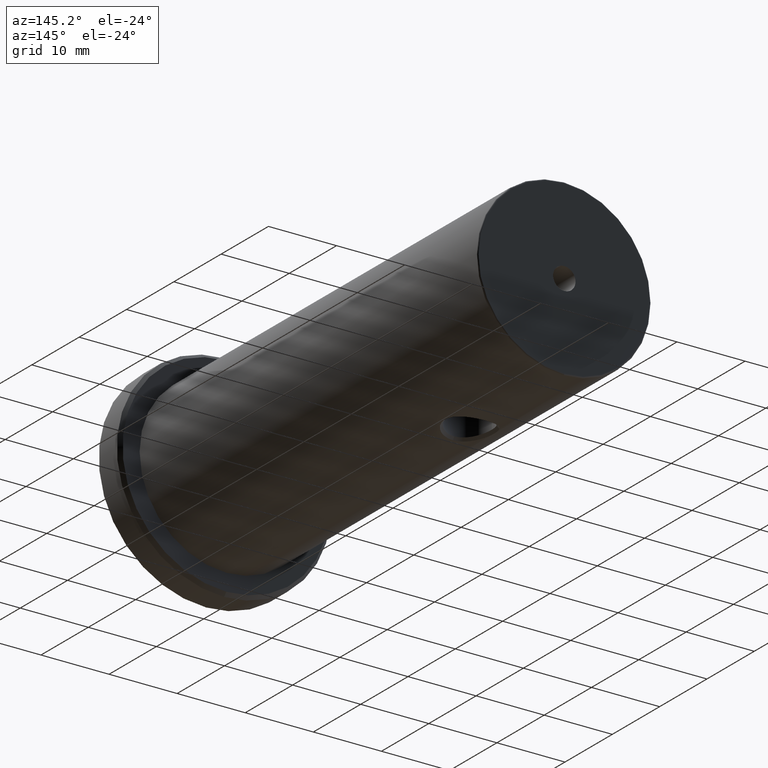
[diagram: clean part render]
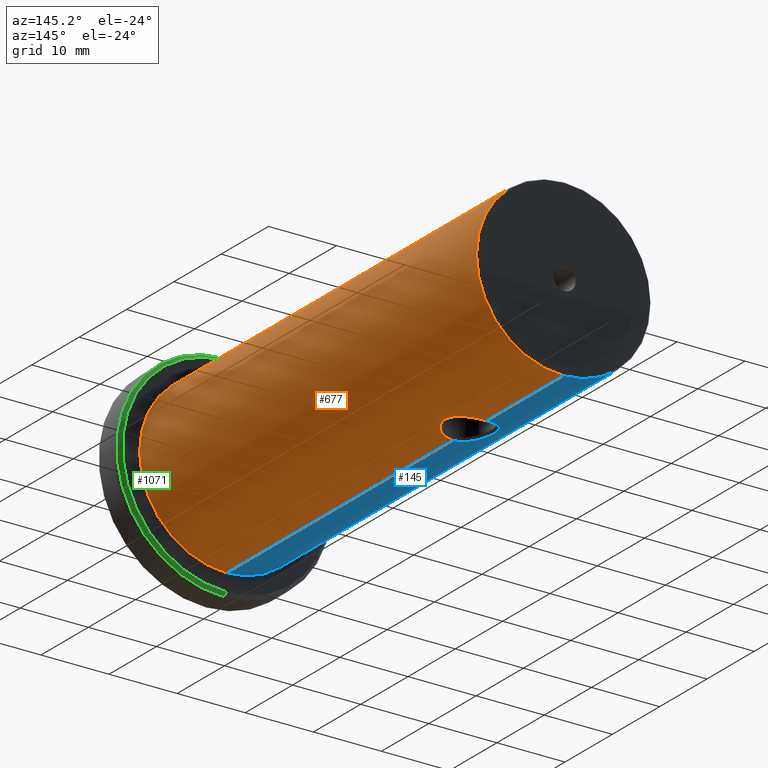
[diagram: same view with three faces highlighted in distinct colors, each labeled with its STEP entity id]
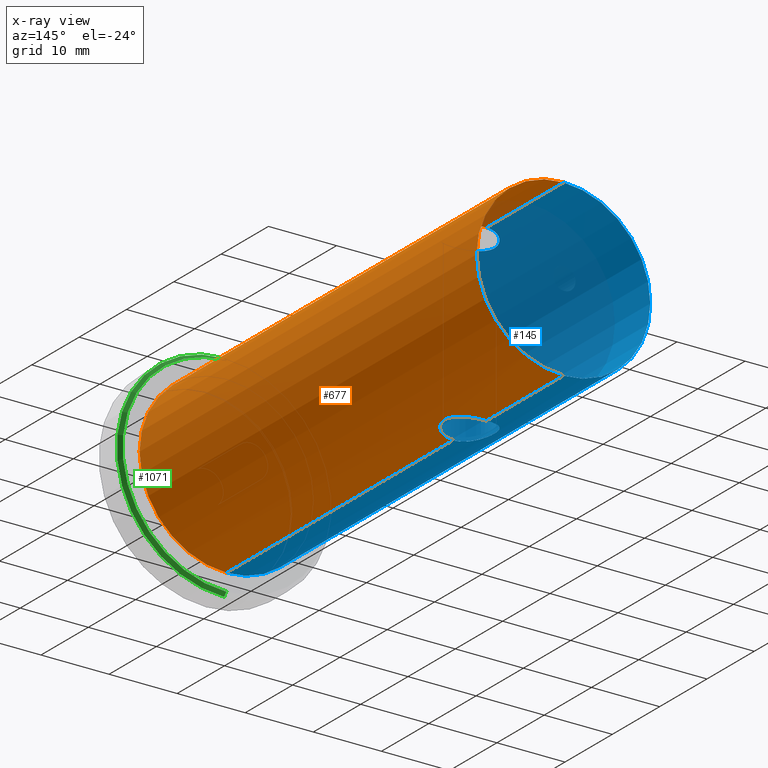
[diagram: x-ray of the same camera — body ghosted, the three highlighted faces saturated]
A machine part, auxiliary view with three faces highlighted in distinct colors.
The next image is the same camera in x-ray (body ghosted, the three faces saturated) — at least one of them is partly hidden behind the body in this view.
Their STEP definitions:

[orange] entity #677 — the highlighted cylindrical surface (partial cylindrical patch) has radius 12.75 mm, axis along (-0, -1, -0).
#42 = CARTESIAN_POINT ( 'NONE',  ( 0.9407393882889534265, 59.61079948247463989, -12.71738396813528027 ) ) ;
#45 = DIRECTION ( 'NONE',  ( -0.000000000000000000, -1.000000000000000000, -0.000000000000000000 ) ) ;
#48 = CARTESIAN_POINT ( 'NONE',  ( 0.000000000000000000, 75.99999999999998579, -12.75000000000000000 ) ) ;
#68 = CIRCLE ( 'NONE', #882, 12.75000000000000000 ) ;
#74 = LINE ( 'NONE', #498, #878 ) ;
#87 = CARTESIAN_POINT ( 'NONE',  ( 1.170622004076832923, 52.85730571162838487, -12.69818165278112154 ) ) ;
#118 = CIRCLE ( 'NONE', #1353, 12.75000000000000000 ) ;
#127 = CARTESIAN_POINT ( 'NONE',  ( 2.892035043247136450, 58.35264160520895871, -12.41840303761199849 ) ) ;
#143 = CARTESIAN_POINT ( 'NONE',  ( 2.742332872511863862, 58.52934498168831823, -12.45278699760889474 ) ) ;
#150 = CARTESIAN_POINT ( 'NONE',  ( 2.406315440693707064, 58.85440117081791556, 12.52204964536912790 ) ) ;
#153 = FACE_OUTER_BOUND ( 'NONE', #848, .T. ) ;
#158 = CARTESIAN_POINT ( 'NONE',  ( 3.640570356984643485, 56.43070274208038484, 12.21919586152654169 ) ) ;
#181 = CARTESIAN_POINT ( 'NONE',  ( -1.248567903695817854E-16, 59.72410025591509708, -12.75000000000000178 ) ) ;
#185 = CARTESIAN_POINT ( 'NONE',  ( 2.236191487499902930, 53.38098169954886885, 12.55706251073218915 ) ) ;
#186 = ORIENTED_EDGE ( 'NONE', *, *, #698, .T. ) ;
#193 = CARTESIAN_POINT ( 'NONE',  ( 0.03027949127382041639, 52.67597521270787553, -12.74997276888836240 ) ) ;
#201 = CARTESIAN_POINT ( 'NONE',  ( 3.446456387668597188, 55.06976917849148379, -12.27541365104979754 ) ) ;
#209 = CARTESIAN_POINT ( 'NONE',  ( 3.640221297053447547, 55.97022942223960484, -12.21929985508286975 ) ) ;
#211 = ORIENTED_EDGE ( 'NONE', *, *, #659, .F. ) ;
#243 = VECTOR ( 'NONE', #305, 1000.000000000000000 ) ;
#244 = CARTESIAN_POINT ( 'NONE',  ( 5.141595970675605500E-11, 59.72409768546009445, 12.74999968928411320 ) ) ;
#257 = VERTEX_POINT ( 'NONE', #653 ) ;
#263 = CARTESIAN_POINT ( 'NONE',  ( 3.264272287397143035, 54.63080984024566789, 12.32543516798856231 ) ) ;
#267 = CARTESIAN_POINT ( 'NONE',  ( 3.517627349664022240, 57.10841347431223625, 12.25520876361821010 ) ) ;
#288 = CARTESIAN_POINT ( 'NONE',  ( 0.4776096156594242248, 52.67572028153879415, 12.74999999999978861 ) ) ;
#290 = VERTEX_POINT ( 'NONE', #244 ) ;
#291 = LINE ( 'NONE', #1051, #243 ) ;
#302 = CARTESIAN_POINT ( 'NONE',  ( 0.8263362941263415751, 52.75511141154360217, -12.72694638460118277 ) ) ;
#303 = CARTESIAN_POINT ( 'NONE',  ( 0.000000000000000000, 75.99999999999998579, 0.000000000000000000 ) ) ;
#305 = DIRECTION ( 'NONE',  ( -0.000000000000000000, -1.000000000000000000, -0.000000000000000000 ) ) ;
#311 = CARTESIAN_POINT ( 'NONE',  ( 3.516936708190808947, 55.29217101836945858, -12.25540689357401014 ) ) ;
#356 = CYLINDRICAL_SURFACE ( 'NONE', #596, 12.75000000000000000 ) ;
#359 = CARTESIAN_POINT ( 'NONE',  ( 5.141595970675605500E-11, 59.72409768546009445, 12.74999968928411320 ) ) ;
#364 = CARTESIAN_POINT ( 'NONE',  ( 3.516638973226421605, 55.29097946084467452, 12.25549266825986017 ) ) ;
#373 = VERTEX_POINT ( 'NONE', #48 ) ;
#376 = CARTESIAN_POINT ( 'NONE',  ( 0.4787531422279701077, 59.72460721686105245, 12.74999999999580602 ) ) ;
#377 = VECTOR ( 'NONE', #45, 1000.000000000000000 ) ;
#388 = CARTESIAN_POINT ( 'NONE',  ( 3.640258235127870279, 55.96917435277756425, 12.21928885034290957 ) ) ;
#391 = CARTESIAN_POINT ( 'NONE',  ( 1.561424668912875111E-15, 4.799999999999995381, 12.75000000000000000 ) ) ;
#404 = CARTESIAN_POINT ( 'NONE',  ( 1.831336797905347202, 53.14692450727872597, -12.61935926091367222 ) ) ;
#410 = CARTESIAN_POINT ( 'NONE',  ( 0.06010915379576306505, 52.67631598315315955, -12.74986703242887032 ) ) ;
#419 = CARTESIAN_POINT ( 'NONE',  ( 1.844978246665359857E-11, 52.67589988564318304, 12.74999998147677971 ) ) ;
#448 = CARTESIAN_POINT ( 'NONE',  ( 3.131834075114650113E-09, 52.67590097807928373, -12.74999984489722671 ) ) ;
#456 = EDGE_CURVE ( 'NONE', #1073, #290, #291, .T. ) ;
#460 = CARTESIAN_POINT ( 'NONE',  ( 0.4752159204876909571, 59.70158165621003832, -12.74327334002443912 ) ) ;
#472 = CARTESIAN_POINT ( 'NONE',  ( 0.000000000000000000, -7.650118203309686393, 0.000000000000000000 ) ) ;
#498 = CARTESIAN_POINT ( 'NONE',  ( 1.561424668912875111E-15, -7.650118203309686393, 12.75000000000000000 ) ) ;
#504 = CARTESIAN_POINT ( 'NONE',  ( 3.405234116312670256, 57.44297622169172968, 12.28695266771240213 ) ) ;
#513 = CARTESIAN_POINT ( 'NONE',  ( 1.622521076490264003, 53.03906277480989928, -12.64838323738653791 ) ) ;
#522 = CARTESIAN_POINT ( 'NONE',  ( 3.131834075114650113E-09, 52.67590097807928373, -12.74999984489722671 ) ) ;
#525 = VERTEX_POINT ( 'NONE', #794 ) ;
#533 = B_SPLINE_CURVE_WITH_KNOTS ( 'NONE', 3,
 ( #522, #720, #193, #410, #1141, #611, #1039, #302, #87, #513, #404, #824, #1257, #1265, #730, #1147, #201, #311, #738, #1156, #209, #631, #1056, #540, #535, #675, #743, #127, #143, #1099, #991, #1171, #42, #460, #1178, #957 ),
 .UNSPECIFIED., .F., .F.,
 ( 4, 2, 1, 1, 1, 1, 2, 2, 2, 2, 2, 2, 2, 2, 2, 2, 2, 2, 2, 4 ),
 ( 0.4999084474125337074, 0.5018619300398285965, 0.5038154126671234856, 0.5077223779217132638, 0.5155363084308928201, 0.5311641694492519328, 0.5624198914859701581, 0.5936756135226882725, 0.6249313355594063868, 0.6874427796328420603, 0.7030706406512003959, 0.7186985016695587314, 0.7499542237062752914, 0.8124656677797085225, 0.8280935287980664139, 0.8437213898164244164, 0.8749771118531393110, 0.9374885559265695445, 0.9687442779632847722, 1.000000000000000000 ),
 .UNSPECIFIED. ) ;
#534 = EDGE_CURVE ( 'NONE', #1344, #257, #688, .T. ) ;
#535 = CARTESIAN_POINT ( 'NONE',  ( 3.260488713993887622, 57.76610628625199695, -12.32619359930154879 ) ) ;
#536 = CARTESIAN_POINT ( 'NONE',  ( 1.846099146323159745, 53.12888798822110203, 12.62379676937266382 ) ) ;
#540 = CARTESIAN_POINT ( 'NONE',  ( 3.310937904618922900, 57.66289268584203143, -12.31270044935120112 ) ) ;
#582 = CARTESIAN_POINT ( 'NONE',  ( 3.616696794969823436, 55.74106909598076243, 12.22638172106962351 ) ) ;
#596 = AXIS2_PLACEMENT_3D ( 'NONE', #472, #1343, #1321 ) ;
#611 = CARTESIAN_POINT ( 'NONE',  ( 0.2088988875901411912, 52.68077459688048947, -12.74853083454729941 ) ) ;
#621 = DIRECTION ( 'NONE',  ( 0.000000000000000000, 0.000000000000000000, -1.000000000000000000 ) ) ;
#631 = CARTESIAN_POINT ( 'NONE',  ( 3.640795959640364732, 56.66348186404037790, -12.21912864896944129 ) ) ;
#653 = CARTESIAN_POINT ( 'NONE',  ( 0.000000000000000000, 4.799999999999995381, -12.75000000000000000 ) ) ;
#659 = EDGE_CURVE ( 'NONE', #257, #1251, #118, .T. ) ;
#668 = EDGE_CURVE ( 'NONE', #525, #1251, #74, .T. ) ;
#675 = CARTESIAN_POINT ( 'NONE',  ( 3.148692402323568285, 57.96936269309318135, -12.35522446000452312 ) ) ;
#677 = ADVANCED_FACE ( 'NONE', ( #153 ), #356, .T. ) ;
#680 = CARTESIAN_POINT ( 'NONE',  ( 3.640414337615326623, 56.19999999999998863, 12.21924234355325112 ) ) ;
#685 = CARTESIAN_POINT ( 'NONE',  ( 3.447093656694788955, 57.33088907695871228, 12.27523479746694868 ) ) ;
#688 = LINE ( 'NONE', #1010, #930 ) ;
#689 = ORIENTED_EDGE ( 'NONE', *, *, #668, .T. ) ;
#698 = EDGE_CURVE ( 'NONE', #1025, #525, #1244, .T. ) ;
#700 = CARTESIAN_POINT ( 'NONE',  ( 0.9443616150537426090, 59.63374750536871005, 12.72312615049503037 ) ) ;
#703 = CARTESIAN_POINT ( 'NONE',  ( 0.000000000000000000, 4.799999999999995381, 0.000000000000000000 ) ) ;
#716 = CARTESIAN_POINT ( 'NONE',  ( 3.617271045434358623, 56.65866310434945063, 12.22621095166216243 ) ) ;
#720 = CARTESIAN_POINT ( 'NONE',  ( 0.01380704850505167641, 52.67589382859485880, -12.74999999999662492 ) ) ;
#730 = CARTESIAN_POINT ( 'NONE',  ( 3.172110824704357679, 54.41570418790740149, -12.35060476621416470 ) ) ;
#738 = CARTESIAN_POINT ( 'NONE',  ( 3.546277459734538340, 55.40409546392422868, -12.24691856031509296 ) ) ;
#743 = CARTESIAN_POINT ( 'NONE',  ( 3.088089879546966010, 58.06767176771853656, -12.37055884226031210 ) ) ;
#755 = ORIENTED_EDGE ( 'NONE', *, *, #456, .T. ) ;
#774 = EDGE_CURVE ( 'NONE', #373, #1073, #68, .T. ) ;
#787 = CARTESIAN_POINT ( 'NONE',  ( 3.445941058846614169, 55.06831498489901833, 12.27555866055558553 ) ) ;
#790 = CARTESIAN_POINT ( 'NONE',  ( 1.623134652722094451, 59.36039545851861021, 12.64831009955409158 ) ) ;
#794 = CARTESIAN_POINT ( 'NONE',  ( 1.844978246665359857E-11, 52.67589988564318304, 12.74999998147677971 ) ) ;
#803 = ORIENTED_EDGE ( 'NONE', *, *, #1199, .T. ) ;
#806 = DIRECTION ( 'NONE',  ( -0.000000000000000000, -1.000000000000000000, -0.000000000000000000 ) ) ;
#814 = CARTESIAN_POINT ( 'NONE',  ( 2.740586455096792662, 53.86915933242734411, 12.45315838247232598 ) ) ;
#824 = CARTESIAN_POINT ( 'NONE',  ( 2.223882831959472561, 53.40029575677725404, -12.55612869371312179 ) ) ;
#848 = EDGE_LOOP ( 'NONE', ( #1027, #755, #1292, #186, #689, #211, #857, #803, #989 ) ) ;
#857 = ORIENTED_EDGE ( 'NONE', *, *, #534, .F. ) ;
#878 = VECTOR ( 'NONE', #1313, 1000.000000000000000 ) ;
#882 = AXIS2_PLACEMENT_3D ( 'NONE', #303, #1048, #621 ) ;
#887 = DIRECTION ( 'NONE',  ( 0.000000000000000000, 0.000000000000000000, -1.000000000000000000 ) ) ;
#903 = CARTESIAN_POINT ( 'NONE',  ( 1.831451029022990618, 59.25267562341090866, 12.61934287427074253 ) ) ;
#930 = VECTOR ( 'NONE', #806, 1000.000000000000000 ) ;
#934 = CARTESIAN_POINT ( 'NONE',  ( 3.152509518422026424, 54.42726393588017686, 12.35484867547255483 ) ) ;
#957 = CARTESIAN_POINT ( 'NONE',  ( -1.248567903695817854E-16, 59.72410025591509708, -12.75000000000000178 ) ) ;
#987 = CARTESIAN_POINT ( 'NONE',  ( 1.561424668912875111E-15, 75.99999999999998579, 12.75000000000000000 ) ) ;
#989 = ORIENTED_EDGE ( 'NONE', *, *, #1003, .F. ) ;
#991 = CARTESIAN_POINT ( 'NONE',  ( 1.844406017408187104, 59.27118597482738238, -12.62395515885175357 ) ) ;
#998 = CARTESIAN_POINT ( 'NONE',  ( 2.911661630260654832, 58.36519186709990947, 12.41785214260937842 ) ) ;
#1003 = EDGE_CURVE ( 'NONE', #373, #1237, #1305, .T. ) ;
#1010 = CARTESIAN_POINT ( 'NONE',  ( 0.000000000000000000, -7.650118203309686393, -12.75000000000000000 ) ) ;
#1015 = CARTESIAN_POINT ( 'NONE',  ( 2.224020399944233617, 58.99928396849891499, 12.55610451974453134 ) ) ;
#1024 = DIRECTION ( 'NONE',  ( -0.000000000000000000, -1.000000000000000000, -0.000000000000000000 ) ) ;
#1025 = VERTEX_POINT ( 'NONE', #1090 ) ;
#1027 = ORIENTED_EDGE ( 'NONE', *, *, #774, .T. ) ;
#1032 = CARTESIAN_POINT ( 'NONE',  ( 2.891088401086826298, 54.04684429633212517, 12.41862351127002562 ) ) ;
#1039 = CARTESIAN_POINT ( 'NONE',  ( 0.4160692417972174928, 52.69560084838864356, -12.74416787399305129 ) ) ;
#1048 = DIRECTION ( 'NONE',  ( -0.000000000000000000, -1.000000000000000000, -0.000000000000000000 ) ) ;
#1051 = CARTESIAN_POINT ( 'NONE',  ( 1.561424668912875111E-15, -7.650118203309686393, 12.75000000000000000 ) ) ;
#1056 = CARTESIAN_POINT ( 'NONE',  ( 3.547344102866200721, 57.11283401707552798, -12.24815432769323564 ) ) ;
#1073 = VERTEX_POINT ( 'NONE', #987 ) ;
#1090 = CARTESIAN_POINT ( 'NONE',  ( 3.640414337615326623, 56.19999999999998863, 12.21924234355325112 ) ) ;
#1099 = CARTESIAN_POINT ( 'NONE',  ( 2.235164334501807293, 59.01962556558381578, -12.55729727145440400 ) ) ;
#1105 = CARTESIAN_POINT ( 'NONE',  ( 3.546067169786285778, 55.40299179642389760, 12.24697958891809613 ) ) ;
#1107 = B_SPLINE_CURVE_WITH_KNOTS ( 'NONE', 3,
 ( #359, #376, #700, #790, #903, #1015, #150, #998, #1222, #504, #685, #267, #1132, #716, #158, #1331 ),
 .UNSPECIFIED., .F., .F.,
 ( 4, 2, 2, 2, 2, 2, 2, 4 ),
 ( 0.7498892328255181150, 0.8124169246191392801, 0.8436807705159501403, 0.8749446164127608894, 0.9374723082063818325, 0.9531042311547865964, 0.9687361541031913603, 1.000000000000000000 ),
 .UNSPECIFIED. ) ;
#1132 = CARTESIAN_POINT ( 'NONE',  ( 3.546961204287751190, 56.99649007803616030, 12.24672046827018690 ) ) ;
#1136 = CARTESIAN_POINT ( 'NONE',  ( 0.9441845368021513085, 52.76628190528099793, 12.72308305769252534 ) ) ;
#1141 = CARTESIAN_POINT ( 'NONE',  ( 0.1048191313511027123, 52.67709372864374728, -12.74963003610021239 ) ) ;
#1147 = CARTESIAN_POINT ( 'NONE',  ( 3.404767640284455332, 54.95801395432293646, -12.28708199244786492 ) ) ;
#1156 = CARTESIAN_POINT ( 'NONE',  ( 3.616708118109770442, 55.74203937743569526, -12.22637781871824103 ) ) ;
#1171 = CARTESIAN_POINT ( 'NONE',  ( 1.171681230904650484, 59.54203862666122404, -12.69805329354006318 ) ) ;
#1178 = CARTESIAN_POINT ( 'NONE',  ( 0.2391065815866835198, 59.72421821840095646, -12.75000000000000000 ) ) ;
#1199 = EDGE_CURVE ( 'NONE', #1344, #1237, #533, .T. ) ;
#1219 = CARTESIAN_POINT ( 'NONE',  ( 3.404013936475946522, 54.95613282368109509, 12.28729101681558866 ) ) ;
#1222 = CARTESIAN_POINT ( 'NONE',  ( 3.172646187844088583, 57.98459370728372164, 12.35046639179398298 ) ) ;
#1236 = EDGE_CURVE ( 'NONE', #290, #1025, #1107, .T. ) ;
#1237 = VERTEX_POINT ( 'NONE', #181 ) ;
#1244 = B_SPLINE_CURVE_WITH_KNOTS ( 'NONE', 3,
 ( #680, #388, #582, #1105, #364, #787, #1219, #263, #934, #1032, #814, #185, #536, #1136, #288, #419 ),
 .UNSPECIFIED., .F., .F.,
 ( 4, 2, 2, 2, 2, 2, 2, 4 ),
 ( 0.000000000000000000, 0.03125174833614131897, 0.04687762250421242255, 0.06250349667228352613, 0.09375524500842495612, 0.1250069933445663861, 0.1875104900168491906, 0.2500139866891319951 ),
 .UNSPECIFIED. ) ;
#1251 = VERTEX_POINT ( 'NONE', #391 ) ;
#1257 = CARTESIAN_POINT ( 'NONE',  ( 2.406093839709702920, 53.54519332063202341, -12.52209004571656159 ) ) ;
#1265 = CARTESIAN_POINT ( 'NONE',  ( 2.910976211224361343, 54.03452182951302518, -12.41800403493964389 ) ) ;
#1292 = ORIENTED_EDGE ( 'NONE', *, *, #1236, .T. ) ;
#1300 = CARTESIAN_POINT ( 'NONE',  ( 0.000000000000000000, -7.650118203309686393, -12.75000000000000000 ) ) ;
#1305 = LINE ( 'NONE', #1300, #377 ) ;
#1313 = DIRECTION ( 'NONE',  ( -0.000000000000000000, -1.000000000000000000, -0.000000000000000000 ) ) ;
#1321 = DIRECTION ( 'NONE',  ( 0.000000000000000000, 0.000000000000000000, -1.000000000000000000 ) ) ;
#1331 = CARTESIAN_POINT ( 'NONE',  ( 3.640414337615326623, 56.19999999999998863, 12.21924234355325112 ) ) ;
#1343 = DIRECTION ( 'NONE',  ( -0.000000000000000000, -1.000000000000000000, -0.000000000000000000 ) ) ;
#1344 = VERTEX_POINT ( 'NONE', #448 ) ;
#1353 = AXIS2_PLACEMENT_3D ( 'NONE', #703, #1024, #887 ) ;

[blue] entity #145 — the highlighted cylindrical surface (partial cylindrical patch) has radius 12.75 mm, axis along (-0, -1, -0).
#22 = AXIS2_PLACEMENT_3D ( 'NONE', #432, #1183, #660 ) ;
#38 = CARTESIAN_POINT ( 'NONE',  ( -3.517585024605029087, 57.10911204851689149, -12.25522052405827367 ) ) ;
#43 = CARTESIAN_POINT ( 'NONE',  ( -3.311375672646279966, 57.66235497103166807, 12.31258209645972990 ) ) ;
#45 = DIRECTION ( 'NONE',  ( -0.000000000000000000, -1.000000000000000000, -0.000000000000000000 ) ) ;
#48 = CARTESIAN_POINT ( 'NONE',  ( 0.000000000000000000, 75.99999999999998579, -12.75000000000000000 ) ) ;
#49 = B_SPLINE_CURVE_WITH_KNOTS ( 'NONE', 3,
 ( #846, #529, #1303, #837, #223, #1163, #637, #646, #1309, #252, #1072, #38, #667, #121, #963, #1283, #1092, #455, #353, #174, #1239, #913, #1325, #603, #260, #77, #484, #1340, #57, #368, #1317, #274, #1231, #283, #478 ),
 .UNSPECIFIED., .F., .F.,
 ( 4, 2, 2, 2, 2, 2, 2, 2, 2, 2, 2, 2, 2, 2, 1, 1, 1, 2, 4 ),
 ( 0.000000000000000000, 0.06248855592656504809, 0.09373283388984773867, 0.1249771118531304293, 0.1874656677796958104, 0.2030878067613371696, 0.2187099457429785010, 0.2499542237062620798, 0.3124427796328302365, 0.3280649186144722340, 0.3436870575961143426, 0.3749313355593984487, 0.4374198914859661058, 0.4686641694492499344, 0.4842863084308918209, 0.4920973779217128197, 0.4960029126671232635, 0.4979556800398284855, 0.4999084474125337074 ),
 .UNSPECIFIED. ) ;
#51 = CARTESIAN_POINT ( 'NONE',  ( -2.892666224272745001, 58.35226382462598593, 12.41825514491952553 ) ) ;
#57 = CARTESIAN_POINT ( 'NONE',  ( -0.4157334707660759743, 52.69598516406246347, -12.74417918655644755 ) ) ;
#74 = LINE ( 'NONE', #498, #878 ) ;
#77 = CARTESIAN_POINT ( 'NONE',  ( -1.171487804884428163, 52.85859760621393377, -12.69808299857863432 ) ) ;
#81 = EDGE_CURVE ( 'NONE', #873, #290, #1066, .T. ) ;
#82 = ORIENTED_EDGE ( 'NONE', *, *, #1030, .F. ) ;
#121 = CARTESIAN_POINT ( 'NONE',  ( -3.616999689074388957, 56.65993475741076679, -12.22629083583914422 ) ) ;
#145 = ADVANCED_FACE ( 'NONE', ( #1278 ), #604, .T. ) ;
#168 = CARTESIAN_POINT ( 'NONE',  ( -2.236067988686617269, 59.01843684448517280, 12.55713279040622865 ) ) ;
#174 = CARTESIAN_POINT ( 'NONE',  ( -3.149244312233080656, 54.43257522051729325, -12.35508346943763414 ) ) ;
#181 = CARTESIAN_POINT ( 'NONE',  ( -1.248567903695817854E-16, 59.72410025591509708, -12.75000000000000178 ) ) ;
#182 = CARTESIAN_POINT ( 'NONE',  ( -0.2391645443574844099, 59.72384292836812847, 12.75000000000209077 ) ) ;
#197 = CARTESIAN_POINT ( 'NONE',  ( -3.089049514861590851, 54.33426198945282692, 12.37031867906977567 ) ) ;
#205 = CARTESIAN_POINT ( 'NONE',  ( -3.311956687028111190, 54.74052018837600286, 12.31242553936084327 ) ) ;
#223 = CARTESIAN_POINT ( 'NONE',  ( -1.832053829516191445, 59.25140104331330093, -12.61925779924047930 ) ) ;
#234 = AXIS2_PLACEMENT_3D ( 'NONE', #350, #255, #1320 ) ;
#241 = EDGE_CURVE ( 'NONE', #1073, #373, #679, .T. ) ;
#243 = VECTOR ( 'NONE', #305, 1000.000000000000000 ) ;
#244 = CARTESIAN_POINT ( 'NONE',  ( 5.141595970675605500E-11, 59.72409768546009445, 12.74999968928411320 ) ) ;
#252 = CARTESIAN_POINT ( 'NONE',  ( -3.405757629607211623, 57.44257063377912687, -12.28680736069021151 ) ) ;
#255 = DIRECTION ( 'NONE',  ( -0.000000000000000000, -1.000000000000000000, -0.000000000000000000 ) ) ;
#257 = VERTEX_POINT ( 'NONE', #653 ) ;
#260 = CARTESIAN_POINT ( 'NONE',  ( -1.846197308002140769, 53.13013177005783660, -12.62374102883391735 ) ) ;
#274 = CARTESIAN_POINT ( 'NONE',  ( -0.05970551646282074021, 52.67637543531810707, -12.74986893241261221 ) ) ;
#276 = B_SPLINE_CURVE_WITH_KNOTS ( 'NONE', 3,
 ( #1028, #390, #400, #1035, #937, #810, #609, #1369, #818, #197, #616, #1362, #205, #1335, #900, #1002 ),
 .UNSPECIFIED., .F., .F.,
 ( 4, 2, 2, 2, 2, 2, 2, 4 ),
 ( 0.2500139866891320506, 0.2812622383529908010, 0.3125104900168496069, 0.3750069933445671078, 0.4062552450084255806, 0.4218793708403547615, 0.4375034966722839425, 0.5000000000000000000 ),
 .UNSPECIFIED. ) ;
#283 = CARTESIAN_POINT ( 'NONE',  ( -0.01380198691774730570, 52.67590814168488578, -12.75000000000337153 ) ) ;
#290 = VERTEX_POINT ( 'NONE', #244 ) ;
#291 = LINE ( 'NONE', #1051, #243 ) ;
#305 = DIRECTION ( 'NONE',  ( -0.000000000000000000, -1.000000000000000000, -0.000000000000000000 ) ) ;
#350 = CARTESIAN_POINT ( 'NONE',  ( 0.000000000000000000, 4.799999999999995381, 0.000000000000000000 ) ) ;
#353 = CARTESIAN_POINT ( 'NONE',  ( -3.260904882581742825, 54.63615473511342913, -12.32608318248980517 ) ) ;
#368 = CARTESIAN_POINT ( 'NONE',  ( -0.2085241167363003911, 52.68097624991214900, -12.74853706296052458 ) ) ;
#369 = CARTESIAN_POINT ( 'NONE',  ( -1.844799386574616173, 59.27016642946281166, 12.62391413476885127 ) ) ;
#373 = VERTEX_POINT ( 'NONE', #48 ) ;
#377 = VECTOR ( 'NONE', #45, 1000.000000000000000 ) ;
#386 = CARTESIAN_POINT ( 'NONE',  ( -1.171388144922963503, 59.54117971845786883, 12.69808442358982958 ) ) ;
#390 = CARTESIAN_POINT ( 'NONE',  ( -0.2387780886073319897, 52.67598964614395385, 12.75000000000010658 ) ) ;
#391 = CARTESIAN_POINT ( 'NONE',  ( 1.561424668912875111E-15, 4.799999999999995381, 12.75000000000000000 ) ) ;
#400 = CARTESIAN_POINT ( 'NONE',  ( -0.4747851530923248853, 52.69882745405044489, 12.74329165179992174 ) ) ;
#414 = CARTESIAN_POINT ( 'NONE',  ( 0.000000000000000000, -7.650118203309686393, 0.000000000000000000 ) ) ;
#432 = CARTESIAN_POINT ( 'NONE',  ( 0.000000000000000000, 75.99999999999998579, 0.000000000000000000 ) ) ;
#448 = CARTESIAN_POINT ( 'NONE',  ( 3.131834075114650113E-09, 52.67590097807928373, -12.74999984489722671 ) ) ;
#455 = CARTESIAN_POINT ( 'NONE',  ( -3.311389756260600947, 54.73976063011892279, -12.31257843057905355 ) ) ;
#456 = EDGE_CURVE ( 'NONE', #1073, #290, #291, .T. ) ;
#473 = ORIENTED_EDGE ( 'NONE', *, *, #534, .T. ) ;
#478 = CARTESIAN_POINT ( 'NONE',  ( 3.131834075114650113E-09, 52.67590097807928373, -12.74999984489722671 ) ) ;
#484 = CARTESIAN_POINT ( 'NONE',  ( -0.9408533798561828920, 52.78992413999811362, -12.71737698017920515 ) ) ;
#498 = CARTESIAN_POINT ( 'NONE',  ( 1.561424668912875111E-15, -7.650118203309686393, 12.75000000000000000 ) ) ;
#510 = DIRECTION ( 'NONE',  ( 0.000000000000000000, 0.000000000000000000, -1.000000000000000000 ) ) ;
#517 = ORIENTED_EDGE ( 'NONE', *, *, #668, .F. ) ;
#518 = EDGE_CURVE ( 'NONE', #525, #873, #276, .T. ) ;
#525 = VERTEX_POINT ( 'NONE', #794 ) ;
#529 = CARTESIAN_POINT ( 'NONE',  ( -0.4779301703189590689, 59.72386447055701097, -12.74999999999999822 ) ) ;
#534 = EDGE_CURVE ( 'NONE', #1344, #257, #688, .T. ) ;
#550 = ORIENTED_EDGE ( 'NONE', *, *, #241, .T. ) ;
#586 = CARTESIAN_POINT ( 'NONE',  ( 5.141595970675605500E-11, 59.72409768546009445, 12.74999968928411320 ) ) ;
#595 = CARTESIAN_POINT ( 'NONE',  ( -3.260868743366200029, 57.76583221171267724, 12.32609285859435211 ) ) ;
#603 = CARTESIAN_POINT ( 'NONE',  ( -2.237330915174609469, 53.38192854744747251, -12.55689346078165336 ) ) ;
#604 = CYLINDRICAL_SURFACE ( 'NONE', #1285, 12.75000000000000000 ) ;
#609 = CARTESIAN_POINT ( 'NONE',  ( -2.238102423692459375, 53.38296993641902333, 12.55674913884015531 ) ) ;
#616 = CARTESIAN_POINT ( 'NONE',  ( -3.149579080811792497, 54.43274123127451958, 12.35499825407037910 ) ) ;
#637 = CARTESIAN_POINT ( 'NONE',  ( -2.407320675812065325, 58.85323930199108133, -12.52185725998602983 ) ) ;
#646 = CARTESIAN_POINT ( 'NONE',  ( -2.912835250070541449, 58.36442910476858259, -12.41758024369382518 ) ) ;
#653 = CARTESIAN_POINT ( 'NONE',  ( 0.000000000000000000, 4.799999999999995381, -12.75000000000000000 ) ) ;
#660 = DIRECTION ( 'NONE',  ( 0.000000000000000000, 0.000000000000000000, -1.000000000000000000 ) ) ;
#667 = CARTESIAN_POINT ( 'NONE',  ( -3.546832695704991600, 56.99737062394443399, -12.24675758790873026 ) ) ;
#668 = EDGE_CURVE ( 'NONE', #525, #1251, #74, .T. ) ;
#669 = ORIENTED_EDGE ( 'NONE', *, *, #518, .T. ) ;
#679 = CIRCLE ( 'NONE', #22, 12.75000000000000000 ) ;
#688 = LINE ( 'NONE', #1010, #930 ) ;
#791 = CARTESIAN_POINT ( 'NONE',  ( -0.9408025202225036576, 59.60985752618679356, 12.71737912459824571 ) ) ;
#794 = CARTESIAN_POINT ( 'NONE',  ( 1.844978246665359857E-11, 52.67589988564318304, 12.74999998147677971 ) ) ;
#805 = CARTESIAN_POINT ( 'NONE',  ( -0.4752980835671478110, 59.70094400299187498, 12.74327010278686956 ) ) ;
#806 = DIRECTION ( 'NONE',  ( -0.000000000000000000, -1.000000000000000000, -0.000000000000000000 ) ) ;
#810 = CARTESIAN_POINT ( 'NONE',  ( -1.845959308894645767, 53.13021751552101080, 12.62375767523085024 ) ) ;
#818 = CARTESIAN_POINT ( 'NONE',  ( -2.893303308739077373, 54.04897654144966879, 12.41810534951594924 ) ) ;
#833 = ORIENTED_EDGE ( 'NONE', *, *, #1227, .T. ) ;
#837 = CARTESIAN_POINT ( 'NONE',  ( -1.623335507540115685, 59.35924107424084184, -12.64828481768809887 ) ) ;
#840 = ORIENTED_EDGE ( 'NONE', *, *, #456, .F. ) ;
#846 = CARTESIAN_POINT ( 'NONE',  ( -1.248567903695817854E-16, 59.72410025591509708, -12.75000000000000178 ) ) ;
#873 = VERTEX_POINT ( 'NONE', #1082 ) ;
#878 = VECTOR ( 'NONE', #1313, 1000.000000000000000 ) ;
#898 = CARTESIAN_POINT ( 'NONE',  ( -3.149160299875460645, 57.96909932545471378, 12.35510499857616118 ) ) ;
#900 = CARTESIAN_POINT ( 'NONE',  ( -3.640446209833033020, 55.74111189005257216, 12.21923284803386345 ) ) ;
#913 = CARTESIAN_POINT ( 'NONE',  ( -2.892967123248753047, 54.04886350312008148, -12.41818375079603953 ) ) ;
#928 = ORIENTED_EDGE ( 'NONE', *, *, #1003, .T. ) ;
#930 = VECTOR ( 'NONE', #806, 1000.000000000000000 ) ;
#937 = CARTESIAN_POINT ( 'NONE',  ( -1.172007036002669977, 52.85901252275343865, 12.69803057213288433 ) ) ;
#963 = CARTESIAN_POINT ( 'NONE',  ( -3.640357837837703947, 56.43202872263326952, -12.21925917623309488 ) ) ;
#979 = EDGE_LOOP ( 'NONE', ( #840, #550, #928, #833, #473, #82, #517, #669, #1189 ) ) ;
#987 = CARTESIAN_POINT ( 'NONE',  ( 1.561424668912875111E-15, 75.99999999999998579, 12.75000000000000000 ) ) ;
#1000 = CARTESIAN_POINT ( 'NONE',  ( -3.547019584194587072, 57.11328752088783034, 12.24823822876621371 ) ) ;
#1002 = CARTESIAN_POINT ( 'NONE',  ( -3.640413603229200490, 56.20223846368496368, 12.21924256234500739 ) ) ;
#1003 = EDGE_CURVE ( 'NONE', #373, #1237, #1305, .T. ) ;
#1010 = CARTESIAN_POINT ( 'NONE',  ( 0.000000000000000000, -7.650118203309686393, -12.75000000000000000 ) ) ;
#1022 = CARTESIAN_POINT ( 'NONE',  ( -3.088599935715138134, 58.06739434970960900, 12.37043128267735881 ) ) ;
#1028 = CARTESIAN_POINT ( 'NONE',  ( 1.844978246665359857E-11, 52.67589988564318304, 12.74999998147677971 ) ) ;
#1029 = DIRECTION ( 'NONE',  ( -0.000000000000000000, -1.000000000000000000, -0.000000000000000000 ) ) ;
#1030 = EDGE_CURVE ( 'NONE', #1251, #257, #1225, .T. ) ;
#1035 = CARTESIAN_POINT ( 'NONE',  ( -0.9405553451804697929, 52.78999912266847616, 12.71739984065464490 ) ) ;
#1051 = CARTESIAN_POINT ( 'NONE',  ( 1.561424668912875111E-15, -7.650118203309686393, 12.75000000000000000 ) ) ;
#1066 = B_SPLINE_CURVE_WITH_KNOTS ( 'NONE', 3,
 ( #1100, #1134, #1000, #43, #595, #898, #1022, #51, #1326, #168, #369, #386, #791, #805, #182, #586 ),
 .UNSPECIFIED., .F., .F.,
 ( 4, 2, 2, 2, 2, 2, 2, 4 ),
 ( 0.5000000000000000000, 0.5624723082063798341, 0.5780903852579750701, 0.5937084623095701952, 0.6249446164127598902, 0.6874169246191390581, 0.7186530787223285310, 0.7498892328255181150 ),
 .UNSPECIFIED. ) ;
#1072 = CARTESIAN_POINT ( 'NONE',  ( -3.447301513413775442, 57.33112050245100022, -12.27517603842160021 ) ) ;
#1073 = VERTEX_POINT ( 'NONE', #987 ) ;
#1082 = CARTESIAN_POINT ( 'NONE',  ( -3.640413603229200490, 56.20223846368496368, 12.21924256234500739 ) ) ;
#1092 = CARTESIAN_POINT ( 'NONE',  ( -3.547181468260604653, 55.28995870606445351, -12.24819330610345958 ) ) ;
#1100 = CARTESIAN_POINT ( 'NONE',  ( -3.640413603229200490, 56.20223846368496368, 12.21924256234500739 ) ) ;
#1134 = CARTESIAN_POINT ( 'NONE',  ( -3.640381009248798261, 56.66318651511517857, 12.21925227289531257 ) ) ;
#1163 = CARTESIAN_POINT ( 'NONE',  ( -2.224923142861070957, 58.99804634321851893, -12.55594702307627308 ) ) ;
#1183 = DIRECTION ( 'NONE',  ( -0.000000000000000000, -1.000000000000000000, -0.000000000000000000 ) ) ;
#1189 = ORIENTED_EDGE ( 'NONE', *, *, #81, .T. ) ;
#1225 = CIRCLE ( 'NONE', #234, 12.75000000000000000 ) ;
#1227 = EDGE_CURVE ( 'NONE', #1237, #1344, #49, .T. ) ;
#1231 = CARTESIAN_POINT ( 'NONE',  ( -0.02986999063841690172, 52.67600517091954515, -12.74997373824963987 ) ) ;
#1237 = VERTEX_POINT ( 'NONE', #181 ) ;
#1239 = CARTESIAN_POINT ( 'NONE',  ( -3.088725100431952697, 54.33413507918994867, -12.37039970514877396 ) ) ;
#1251 = VERTEX_POINT ( 'NONE', #391 ) ;
#1278 = FACE_OUTER_BOUND ( 'NONE', #979, .T. ) ;
#1283 = CARTESIAN_POINT ( 'NONE',  ( -3.640527032901635707, 55.73946424703574110, -12.21920876884280283 ) ) ;
#1285 = AXIS2_PLACEMENT_3D ( 'NONE', #414, #1029, #510 ) ;
#1300 = CARTESIAN_POINT ( 'NONE',  ( 0.000000000000000000, -7.650118203309686393, -12.75000000000000000 ) ) ;
#1303 = CARTESIAN_POINT ( 'NONE',  ( -0.9444814684165483420, 59.63262020196870594, -12.72311922263628325 ) ) ;
#1305 = LINE ( 'NONE', #1300, #377 ) ;
#1309 = CARTESIAN_POINT ( 'NONE',  ( -3.173427635374169054, 57.98426521332154238, -12.35026232306278970 ) ) ;
#1313 = DIRECTION ( 'NONE',  ( -0.000000000000000000, -1.000000000000000000, -0.000000000000000000 ) ) ;
#1317 = CARTESIAN_POINT ( 'NONE',  ( -0.1044242455353575072, 52.67719691184512243, -12.74963330022763408 ) ) ;
#1320 = DIRECTION ( 'NONE',  ( 0.000000000000000000, 0.000000000000000000, -1.000000000000000000 ) ) ;
#1325 = CARTESIAN_POINT ( 'NONE',  ( -2.743525448815512302, 53.87208091628976803, -12.45251977970947976 ) ) ;
#1326 = CARTESIAN_POINT ( 'NONE',  ( -2.743037681391638838, 58.52882267743911626, 12.45263085737092723 ) ) ;
#1335 = CARTESIAN_POINT ( 'NONE',  ( -3.547253675915735815, 55.28965749313685052, 12.24816588324911315 ) ) ;
#1340 = CARTESIAN_POINT ( 'NONE',  ( -0.5915928070343784428, 52.72162178421915257, -12.73680154258752495 ) ) ;
#1344 = VERTEX_POINT ( 'NONE', #448 ) ;
#1362 = CARTESIAN_POINT ( 'NONE',  ( -3.261288621777637786, 54.63646789989252284, 12.32598177711752285 ) ) ;
#1369 = CARTESIAN_POINT ( 'NONE',  ( -2.743926589563190799, 53.87232261273008760, 12.45242967134379697 ) ) ;

[green] entity #1071 — the highlighted conical surface has half-angle 45 deg.
#3 = ORIENTED_EDGE ( 'NONE', *, *, #214, .T. ) ;
#64 = CARTESIAN_POINT ( 'NONE',  ( 0.000000000000000000, 4.299999999999994493, -15.75000000000000000 ) ) ;
#90 = VERTEX_POINT ( 'NONE', #64 ) ;
#99 = CARTESIAN_POINT ( 'NONE',  ( 1.867586368699713770E-15, 4.799999999999995381, 15.25000000000000000 ) ) ;
#140 = DIRECTION ( 'NONE',  ( -0.000000000000000000, -1.000000000000000000, -0.000000000000000000 ) ) ;
#149 = AXIS2_PLACEMENT_3D ( 'NONE', #766, #650, #860 ) ;
#171 = EDGE_CURVE ( 'NONE', #90, #673, #393, .T. ) ;
#172 = EDGE_LOOP ( 'NONE', ( #3, #890, #1287, #608 ) ) ;
#190 = CARTESIAN_POINT ( 'NONE',  ( 0.000000000000000000, 4.299999999999994493, 0.000000000000000000 ) ) ;
#214 = EDGE_CURVE ( 'NONE', #281, #936, #754, .T. ) ;
#281 = VERTEX_POINT ( 'NONE', #1196 ) ;
#296 = DIRECTION ( 'NONE',  ( 8.659560562354931626E-17, -0.7071067811865475727, 0.7071067811865474617 ) ) ;
#307 = DIRECTION ( 'NONE',  ( -0.000000000000000000, -1.000000000000000000, -0.000000000000000000 ) ) ;
#309 = AXIS2_PLACEMENT_3D ( 'NONE', #190, #307, #1272 ) ;
#393 = CIRCLE ( 'NONE', #309, 15.75000000000000000 ) ;
#444 = VECTOR ( 'NONE', #296, 1000.000000000000000 ) ;
#480 = FACE_OUTER_BOUND ( 'NONE', #172, .T. ) ;
#606 = LINE ( 'NONE', #633, #1179 ) ;
#608 = ORIENTED_EDGE ( 'NONE', *, *, #747, .F. ) ;
#633 = CARTESIAN_POINT ( 'NONE',  ( 0.000000000000000000, 4.799999999999995381, -15.25000000000000000 ) ) ;
#650 = DIRECTION ( 'NONE',  ( -0.000000000000000000, -1.000000000000000000, -0.000000000000000000 ) ) ;
#673 = VERTEX_POINT ( 'NONE', #916 ) ;
#691 = CONICAL_SURFACE ( 'NONE', #772, 15.25000000000000000, 0.7853981633974482790 ) ;
#695 = CARTESIAN_POINT ( 'NONE',  ( 0.000000000000000000, 4.799999999999995381, 0.000000000000000000 ) ) ;
#741 = EDGE_CURVE ( 'NONE', #936, #673, #1359, .T. ) ;
#747 = EDGE_CURVE ( 'NONE', #281, #90, #606, .T. ) ;
#751 = CARTESIAN_POINT ( 'NONE',  ( 1.898202538678397557E-15, 4.799999999999995381, 15.25000000000000000 ) ) ;
#754 = CIRCLE ( 'NONE', #149, 15.25000000000000000 ) ;
#766 = CARTESIAN_POINT ( 'NONE',  ( 0.000000000000000000, 4.799999999999995381, 0.000000000000000000 ) ) ;
#772 = AXIS2_PLACEMENT_3D ( 'NONE', #695, #140, #1120 ) ;
#838 = DIRECTION ( 'NONE',  ( 0.000000000000000000, -0.7071067811865475727, -0.7071067811865474617 ) ) ;
#860 = DIRECTION ( 'NONE',  ( 0.000000000000000000, 0.000000000000000000, -1.000000000000000000 ) ) ;
#890 = ORIENTED_EDGE ( 'NONE', *, *, #741, .T. ) ;
#916 = CARTESIAN_POINT ( 'NONE',  ( 1.928818708657081344E-15, 4.299999999999994493, 15.75000000000000000 ) ) ;
#936 = VERTEX_POINT ( 'NONE', #751 ) ;
#1071 = ADVANCED_FACE ( 'NONE', ( #480 ), #691, .T. ) ;
#1120 = DIRECTION ( 'NONE',  ( 0.000000000000000000, 0.000000000000000000, -1.000000000000000000 ) ) ;
#1179 = VECTOR ( 'NONE', #838, 1000.000000000000000 ) ;
#1196 = CARTESIAN_POINT ( 'NONE',  ( 0.000000000000000000, 4.799999999999995381, -15.25000000000000000 ) ) ;
#1272 = DIRECTION ( 'NONE',  ( 0.000000000000000000, 0.000000000000000000, -1.000000000000000000 ) ) ;
#1287 = ORIENTED_EDGE ( 'NONE', *, *, #171, .F. ) ;
#1359 = LINE ( 'NONE', #99, #444 ) ;